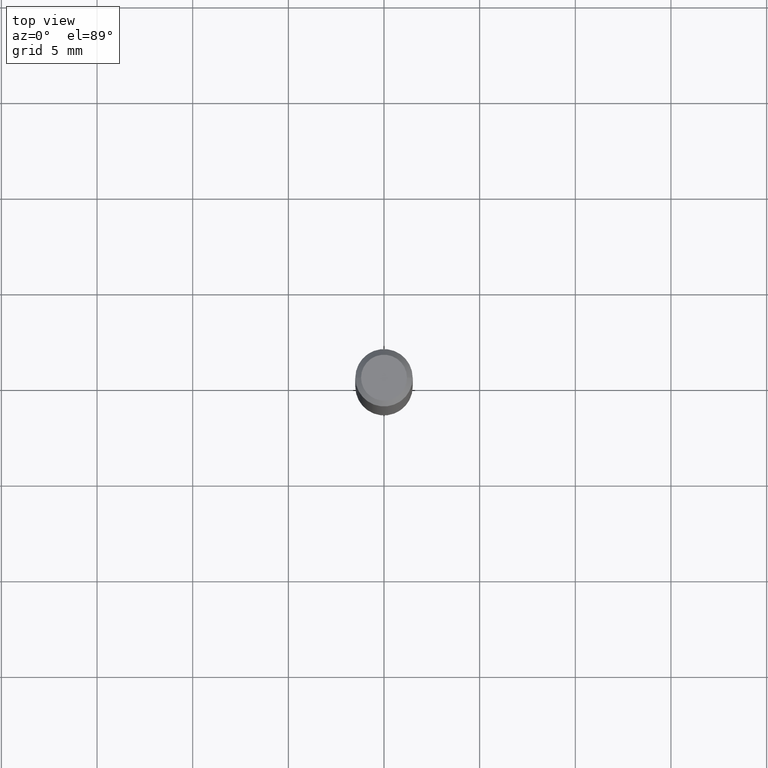
[diagram: clean part render]
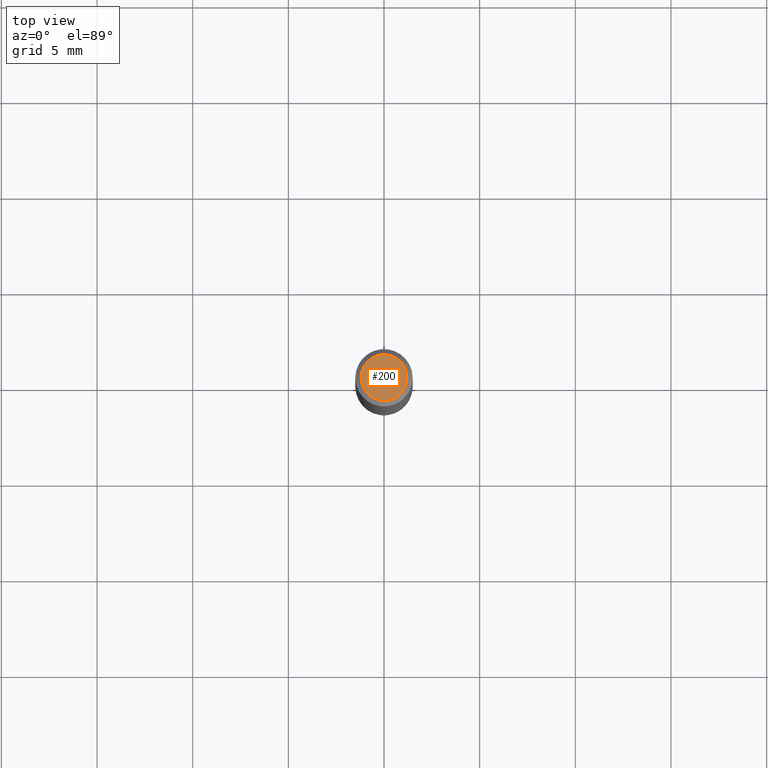
[diagram: same view with one face highlighted and labeled with its STEP entity id]
A machine part, top view. The second image highlights one B-rep face of the part: STEP entity #200.
In plain terms, the highlighted planar face has unit normal (0, -0, -1).
Its self-contained STEP definition (entity closure, byte-faithful):
#1 = EDGE_CURVE ( 'NONE', #241, #45, #2, .T. ) ;
#2 = CIRCLE ( 'NONE', #392, 0.04724000000000000421 ) ;
#45 = VERTEX_POINT ( 'NONE', #376 ) ;
#58 = DIRECTION ( 'NONE',  ( 1.000000000000000000, -6.982962677686266711E-15, 4.876185090822587894E-29 ) ) ;
#94 = CARTESIAN_POINT ( 'NONE',  ( 8.265746106709734507E-48, -1.180129479067563789E-33, -3.380025165646692144E-19 ) ) ;
#100 = ORIENTED_EDGE ( 'NONE', *, *, #1, .T. ) ;
#129 = DIRECTION ( 'NONE',  ( -2.445468806185136597E-29, 3.491481338843145583E-15, 1.000000000000000000 ) ) ;
#162 = CARTESIAN_POINT ( 'NONE',  ( 4.132873053354867254E-48, -5.900647395337818946E-34, -1.690012582823346072E-19 ) ) ;
#200 = ADVANCED_FACE ( 'NONE', ( #201 ), #300, .F. ) ;
#201 = FACE_OUTER_BOUND ( 'NONE', #396, .T. ) ;
#221 = ORIENTED_EDGE ( 'NONE', *, *, #266, .T. ) ;
#241 = VERTEX_POINT ( 'NONE', #279 ) ;
#262 = DIRECTION ( 'NONE',  ( 2.438088387897960049E-29, -3.491481338843145188E-15, -1.000000000000000000 ) ) ;
#266 = EDGE_CURVE ( 'NONE', #45, #241, #377, .T. ) ;
#279 = CARTESIAN_POINT ( 'NONE',  ( -0.04724000000000000421, 3.504923541997677355E-16, -3.380025165670481712E-19 ) ) ;
#300 = PLANE ( 'NONE',  #435 ) ;
#319 = DIRECTION ( 'NONE',  ( -2.445468806185136597E-29, 3.491481338843145583E-15, 1.000000000000000000 ) ) ;
#320 = AXIS2_PLACEMENT_3D ( 'NONE', #428, #319, #58 ) ;
#376 = CARTESIAN_POINT ( 'NONE',  ( 0.04724000000000000421, -3.852183633974369345E-16, -3.380025165621689721E-19 ) ) ;
#377 = CIRCLE ( 'NONE', #320, 0.04724000000000000421 ) ;
#392 = AXIS2_PLACEMENT_3D ( 'NONE', #94, #129, #429 ) ;
#396 = EDGE_LOOP ( 'NONE', ( #100, #221 ) ) ;
#423 = DIRECTION ( 'NONE',  ( -1.000000000000000000, 6.982962677686265922E-15, -4.876176775795935793E-29 ) ) ;
#428 = CARTESIAN_POINT ( 'NONE',  ( 8.265746106709734507E-48, -1.180129479067563789E-33, -3.380025165646692144E-19 ) ) ;
#429 = DIRECTION ( 'NONE',  ( 1.000000000000000000, -6.982962677686266711E-15, 4.876185090822587894E-29 ) ) ;
#435 = AXIS2_PLACEMENT_3D ( 'NONE', #162, #262, #423 ) ;